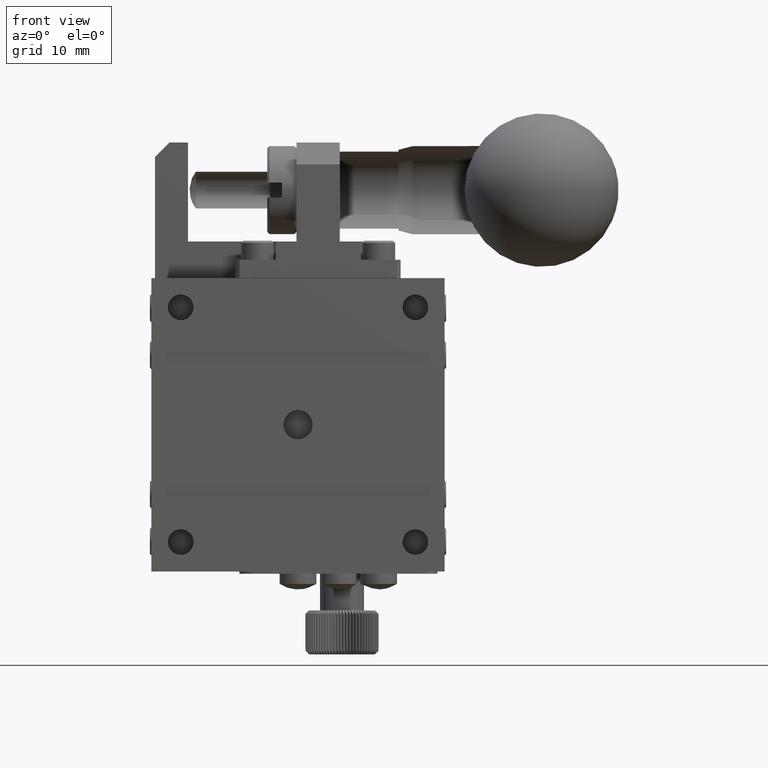
[diagram: clean part render]
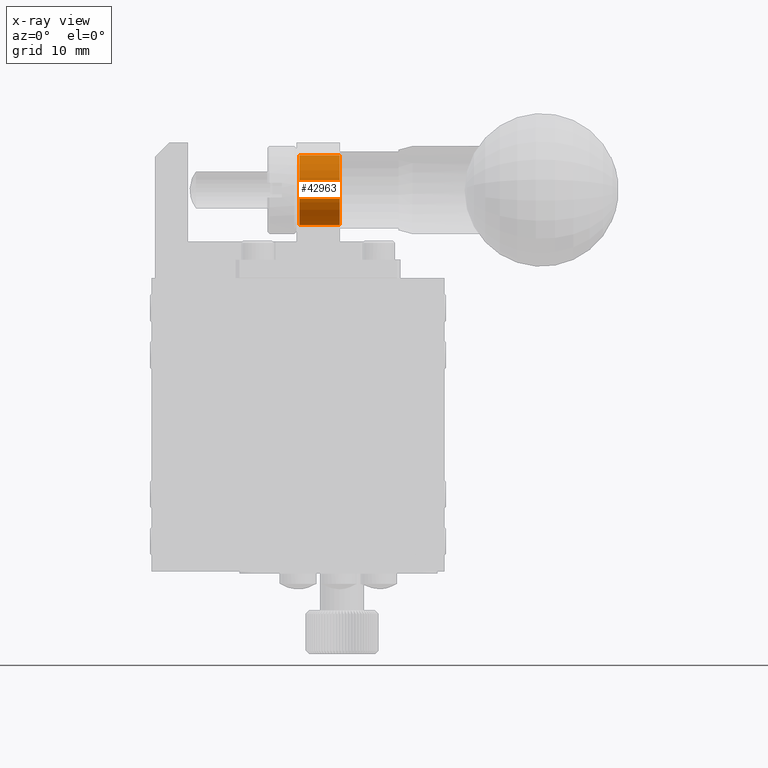
[diagram: x-ray — body ghosted, one internal face saturated and labeled with its STEP entity id]
A machine part, front view, then the same camera in x-ray: the body is ghosted and one INTERNAL B-rep face — a face not visible from any outside direction — is saturated and labeled: STEP entity #42963.
In plain terms, the highlighted cylindrical surface (bore or boss wall) has radius 4.75 mm, axis along (-1, -0, 0).
Its self-contained STEP definition (entity closure, byte-faithful):
#51 = CARTESIAN_POINT ( 'NONE',  ( 21.30959005914812110, 8.900000000000000355, 32.00000000000000000 ) ) ;
#12297 = CARTESIAN_POINT ( 'NONE',  ( 26.80959005914811755, 8.900000000000000355, 36.75000000000000000 ) ) ;
#14668 = DIRECTION ( 'NONE',  ( 1.000000000000000000, 0.000000000000000000, -0.000000000000000000 ) ) ;
#16502 = AXIS2_PLACEMENT_3D ( 'NONE', #18602, #48690, #93849 ) ;
#18602 = CARTESIAN_POINT ( 'NONE',  ( 26.80959005914811755, 8.900000000000000355, 32.00000000000000000 ) ) ;
#21130 = AXIS2_PLACEMENT_3D ( 'NONE', #51, #14668, #80729 ) ;
#34035 = FACE_OUTER_BOUND ( 'NONE', #38216, .T. ) ;
#38216 = EDGE_LOOP ( 'NONE', ( #73399 ) ) ;
#39404 = ORIENTED_EDGE ( 'NONE', *, *, #95056, .T. ) ;
#40799 = CYLINDRICAL_SURFACE ( 'NONE', #42316, 4.749999999999997335 ) ;
#40915 = VERTEX_POINT ( 'NONE', #78363 ) ;
#42316 = AXIS2_PLACEMENT_3D ( 'NONE', #84546, #92807, #70998 ) ;
#42963 = ADVANCED_FACE ( 'NONE', ( #34035, #63206 ), #40799, .T. ) ;
#48239 = VERTEX_POINT ( 'NONE', #12297 ) ;
#48690 = DIRECTION ( 'NONE',  ( -1.000000000000000000, -0.000000000000000000, 0.000000000000000000 ) ) ;
#63206 = FACE_OUTER_BOUND ( 'NONE', #65980, .T. ) ;
#64579 = CIRCLE ( 'NONE', #21130, 4.749999999999997335 ) ;
#65980 = EDGE_LOOP ( 'NONE', ( #39404 ) ) ;
#70998 = DIRECTION ( 'NONE',  ( 0.000000000000000000, 0.000000000000000000, 1.000000000000000000 ) ) ;
#73399 = ORIENTED_EDGE ( 'NONE', *, *, #95286, .T. ) ;
#78363 = CARTESIAN_POINT ( 'NONE',  ( 21.30959005914812110, 8.900000000000000355, 36.75000000000000000 ) ) ;
#80729 = DIRECTION ( 'NONE',  ( 0.000000000000000000, 0.000000000000000000, 1.000000000000000000 ) ) ;
#83163 = CIRCLE ( 'NONE', #16502, 4.749999999999997335 ) ;
#84546 = CARTESIAN_POINT ( 'NONE',  ( 64.80959005914812110, 8.900000000000000355, 32.00000000000000000 ) ) ;
#92807 = DIRECTION ( 'NONE',  ( -1.000000000000000000, -0.000000000000000000, 0.000000000000000000 ) ) ;
#93849 = DIRECTION ( 'NONE',  ( 0.000000000000000000, 0.000000000000000000, 1.000000000000000000 ) ) ;
#95056 = EDGE_CURVE ( 'NONE', #48239, #48239, #83163, .T. ) ;
#95286 = EDGE_CURVE ( 'NONE', #40915, #40915, #64579, .T. ) ;